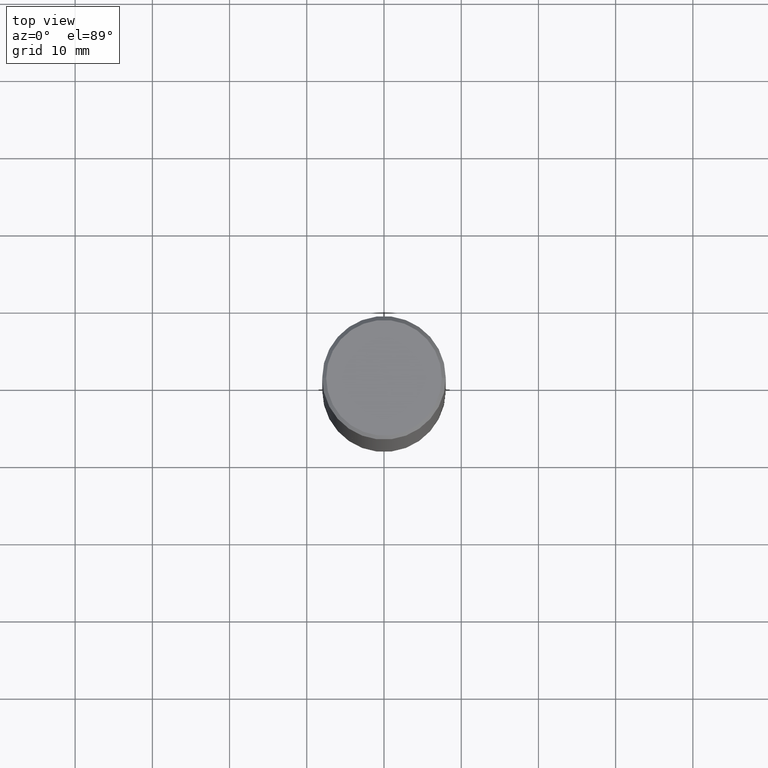
[diagram: clean part render]
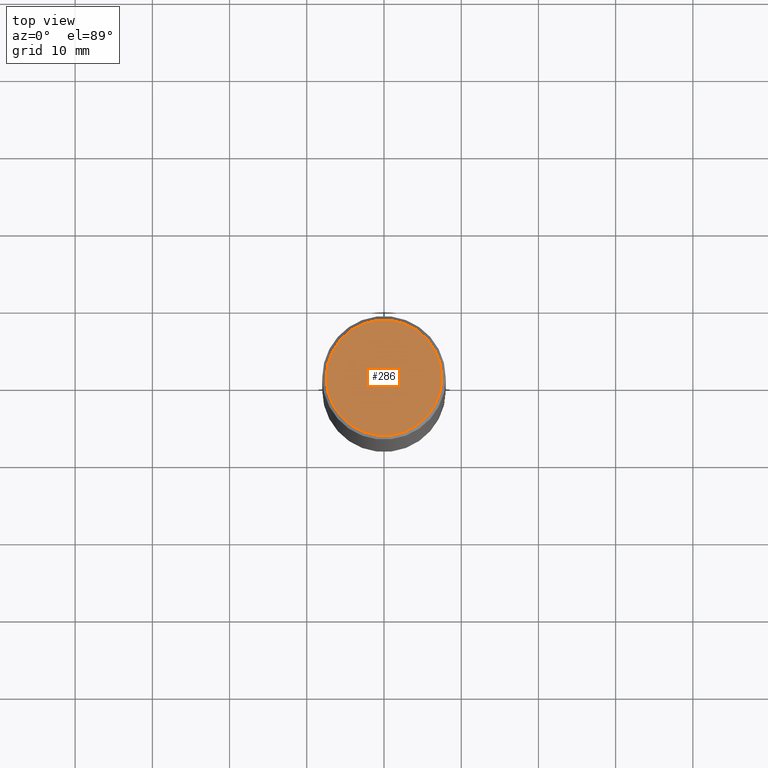
[diagram: same view with one face highlighted and labeled with its STEP entity id]
A machine part, top view. The second image highlights one B-rep face of the part: STEP entity #286.
In plain terms, the highlighted planar face has unit normal (0, -0, -1).
Its self-contained STEP definition (entity closure, byte-faithful):
#55 = EDGE_LOOP ( 'NONE', ( #231, #340 ) ) ;
#64 = DIRECTION ( 'NONE',  ( -1.000000000000000000, 6.982962677686265922E-15, -4.876176775795935793E-29 ) ) ;
#86 = DIRECTION ( 'NONE',  ( 1.000000000000000000, -6.982962677686267499E-15, 4.876053491004739391E-29 ) ) ;
#106 = EDGE_CURVE ( 'NONE', #171, #153, #185, .T. ) ;
#125 = FACE_OUTER_BOUND ( 'NONE', #55, .T. ) ;
#126 = EDGE_CURVE ( 'NONE', #153, #171, #234, .T. ) ;
#145 = CARTESIAN_POINT ( 'NONE',  ( -2.087702828670439639E-46, 2.980686340760894400E-32, 8.537024980200822558E-18 ) ) ;
#153 = VERTEX_POINT ( 'NONE', #252 ) ;
#169 = CARTESIAN_POINT ( 'NONE',  ( -0.2949499999999997124, 2.094539655171993740E-15, 8.537024980186296424E-18 ) ) ;
#171 = VERTEX_POINT ( 'NONE', #169 ) ;
#173 = DIRECTION ( 'NONE',  ( 1.000000000000000000, -6.982962677686267499E-15, 4.876053491004739391E-29 ) ) ;
#185 = CIRCLE ( 'NONE', #261, 0.2949499999999997124 ) ;
#231 = ORIENTED_EDGE ( 'NONE', *, *, #106, .T. ) ;
#234 = CIRCLE ( 'NONE', #240, 0.2949499999999997124 ) ;
#235 = PLANE ( 'NONE',  #322 ) ;
#240 = AXIS2_PLACEMENT_3D ( 'NONE', #308, #275, #173 ) ;
#252 = CARTESIAN_POINT ( 'NONE',  ( 0.2949499999999997124, -2.127023677808858103E-15, 8.537024980215462707E-18 ) ) ;
#261 = AXIS2_PLACEMENT_3D ( 'NONE', #145, #279, #86 ) ;
#275 = DIRECTION ( 'NONE',  ( -2.445468806185136597E-29, 3.491481338843145583E-15, 1.000000000000000000 ) ) ;
#279 = DIRECTION ( 'NONE',  ( -2.445468806185136597E-29, 3.491481338843145583E-15, 1.000000000000000000 ) ) ;
#286 = ADVANCED_FACE ( 'NONE', ( #125 ), #235, .F. ) ;
#308 = CARTESIAN_POINT ( 'NONE',  ( -2.087702828670439639E-46, 2.980686340760894400E-32, 8.537024980200822558E-18 ) ) ;
#311 = CARTESIAN_POINT ( 'NONE',  ( 2.059624841783562091E-15, 0.2949499999999997124, -1.025543908401684366E-15 ) ) ;
#316 = DIRECTION ( 'NONE',  ( 2.438088387897960049E-29, -3.491481338843145188E-15, -1.000000000000000000 ) ) ;
#322 = AXIS2_PLACEMENT_3D ( 'NONE', #311, #316, #64 ) ;
#340 = ORIENTED_EDGE ( 'NONE', *, *, #126, .T. ) ;